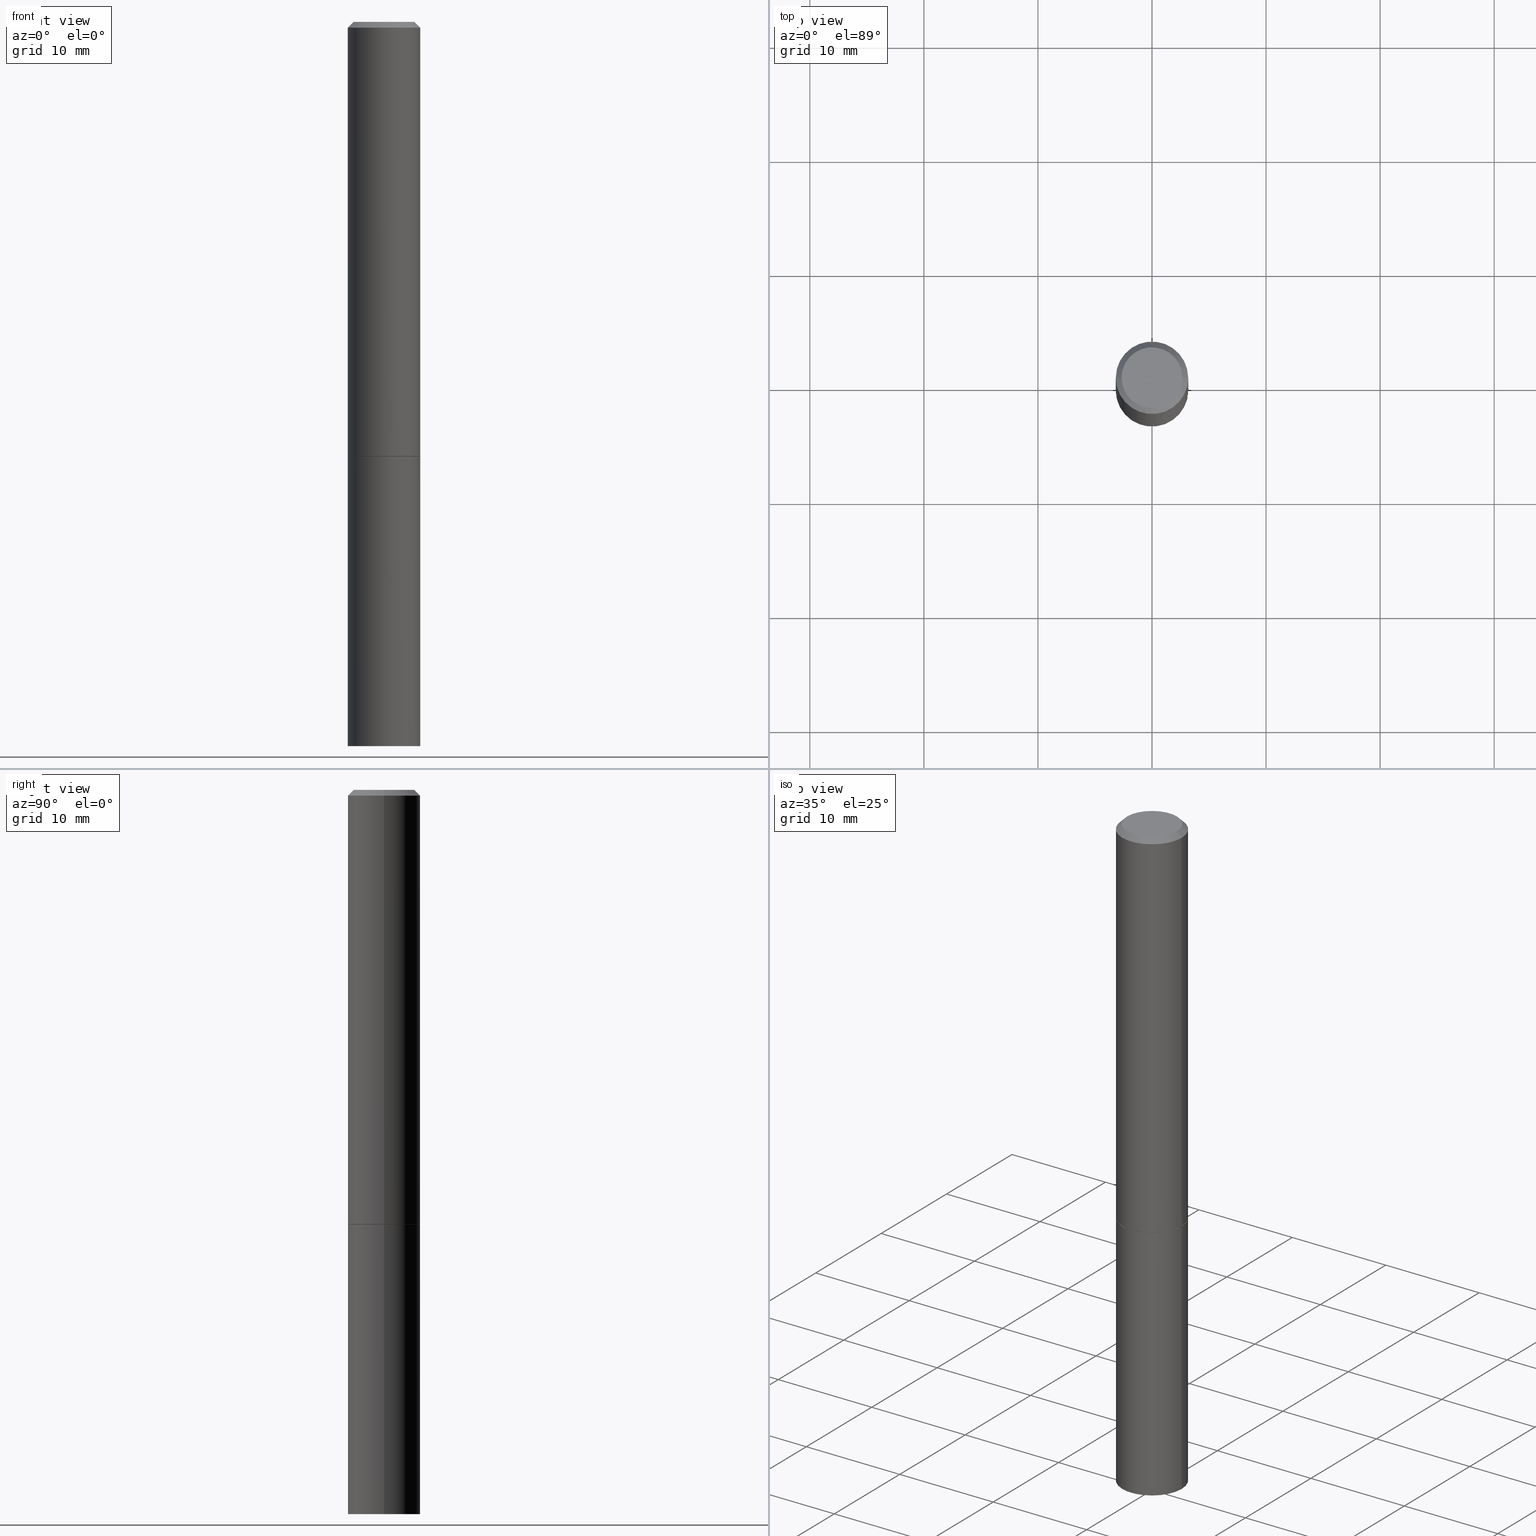
[diagram: canonical four-view strip — front | top / right | iso, engineering-drawing reading convention]
A machine part, canonical four-view strip (front | top / right | iso — engineering-drawing reading convention). The complete STEP part file that produces these views, byte-faithful:
ISO-10303-21;
HEADER;
FILE_DESCRIPTION (( 'STEP AP203' ),
    '1' );
FILE_NAME ('72955.STEP',
    '2024-02-29T04:51:39',
    ( '' ),
    ( '' ),
    'SwSTEP 2.0',
    'SolidWorks 2023',
    '' );
FILE_SCHEMA (( 'CONFIG_CONTROL_DESIGN' ));
ENDSEC;

DATA;
#1 = EDGE_CURVE ( 'NONE', #131, #157, #38, .T. ) ;
#2 = VERTEX_POINT ( 'NONE', #67 ) ;
#3 = APPROVAL_DATE_TIME ( #279, #259 ) ;
#4 = ORIENTED_EDGE ( 'NONE', *, *, #201, .T. ) ;
#5 = CC_DESIGN_PERSON_AND_ORGANIZATION_ASSIGNMENT ( #33, #112, ( #71 ) ) ;
#6 = CARTESIAN_POINT ( 'NONE',  ( 0.1250000000000000000, -8.728703347107833388E-16, 6.095220969744919741E-30 ) ) ;
#7 = EDGE_LOOP ( 'NONE', ( #133, #64 ) ) ;
#8 = DIRECTION ( 'NONE',  ( -2.445468806185136597E-29, 3.491481338843145583E-15, 1.000000000000000000 ) ) ;
#9 = DIRECTION ( 'NONE',  ( -2.445468806185136597E-29, 3.491481338843145583E-15, 1.000000000000000000 ) ) ;
#10 = AXIS2_PLACEMENT_3D ( 'NONE', #357, #179, #331 ) ;
#11 = LOCAL_TIME ( 23, 51, 39.00000000000000000, #363 ) ;
#12 = CALENDAR_DATE ( 2024, 28, 2 ) ;
#13 = CARTESIAN_POINT ( 'NONE',  ( 0.1250000000000000000, -6.106600861636658508E-15, -1.499000000000000110 ) ) ;
#14 = ADVANCED_FACE ( 'NONE', ( #351 ), #255, .F. ) ;
#15 = ORIENTED_EDGE ( 'NONE', *, *, #161, .T. ) ;
#16 = EDGE_LOOP ( 'NONE', ( #322, #249, #350, #305 ) ) ;
#17 = CONICAL_SURFACE ( 'NONE', #207, 0.1239999999999999991, 0.7853981633975507526 ) ;
#18 = CARTESIAN_POINT ( 'NONE',  ( -0.1049999999999998018, 7.681258945454876027E-16, -1.707404996040689597E-17 ) ) ;
#19 = ORIENTED_EDGE ( 'NONE', *, *, #25, .T. ) ;
#20 = EDGE_CURVE ( 'NONE', #239, #49, #181, .T. ) ;
#21 = DIRECTION ( 'NONE',  ( -2.445468806185136597E-29, 3.491481338843145583E-15, 1.000000000000000000 ) ) ;
#22 = CIRCLE ( 'NONE', #154, 0.1239999999999999991 ) ;
#23 = DIRECTION ( 'NONE',  ( 0.7071067811866199593, -2.468850131083015945E-15, 0.7071067811864750752 ) ) ;
#24 = CARTESIAN_POINT ( 'NONE',  ( -0.1250000000000000000, -6.094784257986165933E-15, -2.500000000000000000 ) ) ;
#25 = EDGE_CURVE ( 'NONE', #131, #224, #39, .T. ) ;
#26 = PERSON_AND_ORGANIZATION_ROLE ( 'creator' ) ;
#27 = PERSON_AND_ORGANIZATION_ROLE ( 'creator' ) ;
#28 = CC_DESIGN_DATE_AND_TIME_ASSIGNMENT ( #130, #307, ( #73 ) ) ;
#29 = CIRCLE ( 'NONE', #190, 0.1250000000000000000 ) ;
#30 = CARTESIAN_POINT ( 'NONE',  ( 4.175405657340879278E-46, -5.961372681521788801E-32, -1.707404996040164512E-17 ) ) ;
#31 = ORIENTED_EDGE ( 'NONE', *, *, #196, .T. ) ;
#32 = LENGTH_MEASURE_WITH_UNIT ( LENGTH_MEASURE( 0.02539999999999999897 ), #277 );
#33 = PERSON_AND_ORGANIZATION ( #210, #182 ) ;
#34 = CARTESIAN_POINT ( 'NONE',  ( -0.1250000000000000278, -1.763601657151242227E-15, -1.499000000000000110 ) ) ;
#35 = COORDINATED_UNIVERSAL_TIME_OFFSET ( 5, 0, .BEHIND. ) ;
#36 = CYLINDRICAL_SURFACE ( 'NONE', #127, 0.1249999999999999029 ) ;
#37 = DIRECTION ( 'NONE',  ( 2.438088387897960049E-29, -3.491481338843145188E-15, -1.000000000000000000 ) ) ;
#38 = CIRCLE ( 'NONE', #89, 0.1049999999999998018 ) ;
#39 = LINE ( 'NONE', #142, #225 ) ;
#40 = ADVANCED_FACE ( 'NONE', ( #348 ), #303, .T. ) ;
#41 = DIRECTION ( 'NONE',  ( -1.000000000000000000, 6.982962677686265922E-15, -4.876176775795935793E-29 ) ) ;
#42 = LINE ( 'NONE', #290, #256 ) ;
#43 = DIRECTION ( 'NONE',  ( -2.445468806185136597E-29, 3.491481338843145583E-15, 1.000000000000000000 ) ) ;
#44 = CARTESIAN_POINT ( 'NONE',  ( -0.1249999999999997780, 8.030407079339186601E-16, -0.02000000000000004552 ) ) ;
#45 = CARTESIAN_POINT ( 'NONE',  ( 0.1049999999999998018, -8.238720831321562839E-16, -1.707404996039620013E-17 ) ) ;
#46 = DATE_AND_TIME ( #12, #345 ) ;
#47 = CARTESIAN_POINT ( 'NONE',  ( 3.665757740471519853E-29, -5.233730526925875958E-15, -1.499000000000000110 ) ) ;
#48 = VECTOR ( 'NONE', #23, 39.37007874015748143 ) ;
#49 = VERTEX_POINT ( 'NONE', #13 ) ;
#50 = CYLINDRICAL_SURFACE ( 'NONE', #242, 0.1250000000000000000 ) ;
#51 = DIRECTION ( 'NONE',  ( -2.445468806185136597E-29, 3.491481338843145583E-15, 1.000000000000000000 ) ) ;
#52 = PERSON_AND_ORGANIZATION ( #210, #182 ) ;
#53 = AXIS2_PLACEMENT_3D ( 'NONE', #268, #43, #295 ) ;
#54 = LOCAL_TIME ( 23, 51, 39.00000000000000000, #55 ) ;
#55 = COORDINATED_UNIVERSAL_TIME_OFFSET ( 5, 0, .BEHIND. ) ;
#56 = ORIENTED_EDGE ( 'NONE', *, *, #329, .T. ) ;
#57 = ADVANCED_FACE ( 'NONE', ( #205 ), #313, .T. ) ;
#58 = DIRECTION ( 'NONE',  ( -2.445468806185136597E-29, 3.491481338843145583E-15, 1.000000000000000000 ) ) ;
#59 = APPROVAL_STATUS ( 'not_yet_approved' ) ;
#60 = ADVANCED_FACE ( 'NONE', ( #232 ), #228, .F. ) ;
#61 = PERSON_AND_ORGANIZATION ( #210, #182 ) ;
#62 = VECTOR ( 'NONE', #177, 39.37007874015748143 ) ;
#63 = APPROVAL ( #293, 'UNSPECIFIED' ) ;
#64 = ORIENTED_EDGE ( 'NONE', *, *, #270, .F. ) ;
#65 =( CONVERSION_BASED_UNIT ( 'INCH', #32 ) LENGTH_UNIT ( ) NAMED_UNIT ( #251 ) );
#66 = ORIENTED_EDGE ( 'NONE', *, *, #188, .F. ) ;
#67 = CARTESIAN_POINT ( 'NONE',  ( 0.1249999999999997780, -9.273918764983029686E-16, -0.02000000000000004552 ) ) ;
#68 = DIRECTION ( 'NONE',  ( 0.000000000000000000, 0.000000000000000000, 1.000000000000000000 ) ) ;
#69 = ORIENTED_EDGE ( 'NONE', *, *, #188, .T. ) ;
#70 = AXIS2_PLACEMENT_3D ( 'NONE', #330, #243, #99 ) ;
#71 = SECURITY_CLASSIFICATION ( '', '', #340 ) ;
#72 = LINE ( 'NONE', #327, #62 ) ;
#73 = PRODUCT_DEFINITION ( 'UNKNOWN', '', #100, #311 ) ;
#74 = DIRECTION ( 'NONE',  ( 1.000000000000000000, -6.982962677686262766E-15, 0.000000000000000000 ) ) ;
#75 = ORIENTED_EDGE ( 'NONE', *, *, #25, .F. ) ;
#76 = APPROVAL_PERSON_ORGANIZATION ( #52, #95, #126 ) ;
#77 = APPLICATION_PROTOCOL_DEFINITION ( 'international standard', 'config_control_design', 1994, #356 ) ;
#78 = AXIS2_PLACEMENT_3D ( 'NONE', #349, #200, #254 ) ;
#79 = PRODUCT ( '72955', '72955', '', ( #341 ) ) ;
#80 = VERTEX_POINT ( 'NONE', #354 ) ;
#81 = AXIS2_PLACEMENT_3D ( 'NONE', #121, #235, #97 ) ;
#82 = AXIS2_PLACEMENT_3D ( 'NONE', #186, #58, #145 ) ;
#83 = ORIENTED_EDGE ( 'NONE', *, *, #1, .F. ) ;
#84 = ADVANCED_FACE ( 'NONE', ( #203 ), #17, .T. ) ;
#85 = PLANE ( 'NONE',  #78 ) ;
#86 = LINE ( 'NONE', #6, #141 ) ;
#87 = PERSON_AND_ORGANIZATION_ROLE ( 'design_owner' ) ;
#88 = ORIENTED_EDGE ( 'NONE', *, *, #319, .F. ) ;
#89 = AXIS2_PLACEMENT_3D ( 'NONE', #209, #123, #118 ) ;
#90 = CARTESIAN_POINT ( 'NONE',  ( 3.668203209277704335E-29, -5.237222008264717388E-15, -1.499999999999999778 ) ) ;
#91 = EDGE_CURVE ( 'NONE', #315, #238, #72, .T. ) ;
#92 = EDGE_LOOP ( 'NONE', ( #281, #31, #165, #88 ) ) ;
#93 = DATE_TIME_ROLE ( 'classification_date' ) ;
#94 = DIRECTION ( 'NONE',  ( -1.000000000000000000, 6.982962677686265922E-15, -4.876176775795935793E-29 ) ) ;
#95 = APPROVAL ( #302, 'UNSPECIFIED' ) ;
#96 = CARTESIAN_POINT ( 'NONE',  ( 3.668203209277704335E-29, -5.237222008264717388E-15, -1.499999999999999778 ) ) ;
#97 = DIRECTION ( 'NONE',  ( 1.000000000000000000, -6.982962677686262766E-15, 0.000000000000000000 ) ) ;
#98 = CARTESIAN_POINT ( 'NONE',  ( 7.332110811570565452E-16, 0.1049999999999998018, -3.751425655587304572E-16 ) ) ;
#99 = DIRECTION ( 'NONE',  ( 1.000000000000000000, -6.982962677686262766E-15, 0.000000000000000000 ) ) ;
#100 = PRODUCT_DEFINITION_FORMATION_WITH_SPECIFIED_SOURCE ( 'ANY', '', #79, .NOT_KNOWN. ) ;
#101 = ORIENTED_EDGE ( 'NONE', *, *, #319, .T. ) ;
#102 = CIRCLE ( 'NONE', #82, 0.1249999999999997780 ) ;
#103 = CARTESIAN_POINT ( 'NONE',  ( 3.668203209277704895E-29, -5.237222008264718177E-15, -1.500000000000000222 ) ) ;
#104 = EDGE_LOOP ( 'NONE', ( #258, #180 ) ) ;
#105 = ORIENTED_EDGE ( 'NONE', *, *, #170, .T. ) ;
#106 = AXIS2_PLACEMENT_3D ( 'NONE', #96, #178, #291 ) ;
#107 = DATE_AND_TIME ( #337, #11 ) ;
#108 = PERSON_AND_ORGANIZATION ( #210, #182 ) ;
#109 = ORIENTED_EDGE ( 'NONE', *, *, #237, .F. ) ;
#110 = CARTESIAN_POINT ( 'NONE',  ( 0.000000000000000000, 0.000000000000000000, 0.000000000000000000 ) ) ;
#111 = LINE ( 'NONE', #223, #199 ) ;
#112 = PERSON_AND_ORGANIZATION_ROLE ( 'classification_officer' ) ;
#113 = ORIENTED_EDGE ( 'NONE', *, *, #117, .T. ) ;
#114 = CARTESIAN_POINT ( 'NONE',  ( 0.000000000000000000, 0.000000000000000000, 0.000000000000000000 ) ) ;
#115 = DIRECTION ( 'NONE',  ( -1.000000000000000000, 6.982962677686266711E-15, 0.000000000000000000 ) ) ;
#116 = APPLICATION_PROTOCOL_DEFINITION ( 'international standard', 'config_control_design', 1994, #328 ) ;
#117 = EDGE_CURVE ( 'NONE', #157, #2, #42, .T. ) ;
#118 = DIRECTION ( 'NONE',  ( 1.000000000000000000, -6.982962677686265922E-15, 4.876206205277402997E-29 ) ) ;
#119 = DIRECTION ( 'NONE',  ( 0.7071067811865465735, -7.319954787623252890E-15, -0.7071067811865484609 ) ) ;
#120 = AXIS2_PLACEMENT_3D ( 'NONE', #206, #9, #316 ) ;
#121 = CARTESIAN_POINT ( 'NONE',  ( 3.668203209277704895E-29, -5.237222008264718177E-15, -1.500000000000000222 ) ) ;
#122 = DIRECTION ( 'NONE',  ( 1.000000000000000000, -6.982962677686262766E-15, 0.000000000000000000 ) ) ;
#123 = DIRECTION ( 'NONE',  ( -2.445468806185136597E-29, 3.491481338843145583E-15, 1.000000000000000000 ) ) ;
#124 = AXIS2_PLACEMENT_3D ( 'NONE', #30, #8, #312 ) ;
#125 = CARTESIAN_POINT ( 'NONE',  ( 0.1250000000000000000, -9.601573681818648281E-15, -2.500000000000000000 ) ) ;
#126 = APPROVAL_ROLE ( '' ) ;
#127 = AXIS2_PLACEMENT_3D ( 'NONE', #138, #51, #152 ) ;
#128 = DIRECTION ( 'NONE',  ( -2.445468806185136877E-29, 3.491481338843145188E-15, 1.000000000000000000 ) ) ;
#129 = EDGE_LOOP ( 'NONE', ( #286, #221, #284, #109 ) ) ;
#130 = DATE_AND_TIME ( #247, #54 ) ;
#131 = VERTEX_POINT ( 'NONE', #18 ) ;
#132 = PERSON_AND_ORGANIZATION ( #210, #182 ) ;
#133 = ORIENTED_EDGE ( 'NONE', *, *, #201, .F. ) ;
#134 = CIRCLE ( 'NONE', #70, 0.1239999999999999991 ) ;
#135 = LOCAL_TIME ( 23, 51, 39.00000000000000000, #35 ) ;
#136 = EDGE_LOOP ( 'NONE', ( #169, #83, #19, #160 ) ) ;
#137 = CALENDAR_DATE ( 2024, 28, 2 ) ;
#138 = CARTESIAN_POINT ( 'NONE',  ( 0.000000000000000000, 0.000000000000000000, 0.000000000000000000 ) ) ;
#139 = CARTESIAN_POINT ( 'NONE',  ( 4.890937612370284544E-31, -6.982962677686307633E-17, -0.02000000000000004552 ) ) ;
#140 = AXIS2_PLACEMENT_3D ( 'NONE', #139, #149, #147 ) ;
#141 = VECTOR ( 'NONE', #198, 39.37007874015748143 ) ;
#142 = CARTESIAN_POINT ( 'NONE',  ( -0.1249999999999997780, 8.030407079339186601E-16, -0.02000000000000004552 ) ) ;
#143 = DIRECTION ( 'NONE',  ( -2.445468806185136597E-29, 3.491481338843145583E-15, 1.000000000000000000 ) ) ;
#144 = DIRECTION ( 'NONE',  ( 2.445468806185136597E-29, -3.491481338843145583E-15, -1.000000000000000000 ) ) ;
#145 = DIRECTION ( 'NONE',  ( 1.000000000000000000, -6.982962677686266711E-15, 0.000000000000000000 ) ) ;
#146 = DIRECTION ( 'NONE',  ( 2.438088387897960049E-29, -3.491481338843145188E-15, -1.000000000000000000 ) ) ;
#147 = DIRECTION ( 'NONE',  ( -1.000000000000000000, 6.982962677686266711E-15, 0.000000000000000000 ) ) ;
#148 = CARTESIAN_POINT ( 'NONE',  ( 8.728703347108198236E-16, 0.1249999999999947542, -1.500000000000000666 ) ) ;
#149 = DIRECTION ( 'NONE',  ( 2.445468806185136597E-29, -3.491481338843145583E-15, -1.000000000000000000 ) ) ;
#150 = DIRECTION ( 'NONE',  ( -2.445468806185136597E-29, 3.491481338843145583E-15, 1.000000000000000000 ) ) ;
#151 = LINE ( 'NONE', #244, #48 ) ;
#152 = DIRECTION ( 'NONE',  ( 1.000000000000000000, -6.982962677686266711E-15, 4.876176775795935793E-29 ) ) ;
#153 = DIRECTION ( 'NONE',  ( -2.445468806185136597E-29, 3.491481338843145583E-15, 1.000000000000000000 ) ) ;
#154 = AXIS2_PLACEMENT_3D ( 'NONE', #189, #297, #336 ) ;
#155 = FACE_OUTER_BOUND ( 'NONE', #204, .T. ) ;
#156 = ADVANCED_FACE ( 'NONE', ( #294 ), #166, .T. ) ;
#157 = VERTEX_POINT ( 'NONE', #45 ) ;
#158 = CLOSED_SHELL ( 'NONE', ( #84, #185, #40, #57, #248, #156, #60, #14 ) ) ;
#159 = DIRECTION ( 'NONE',  ( 1.000000000000000000, -6.982962677686270655E-15, 0.000000000000000000 ) ) ;
#160 = ORIENTED_EDGE ( 'NONE', *, *, #362, .T. ) ;
#161 = EDGE_CURVE ( 'NONE', #80, #238, #262, .T. ) ;
#162 = VERTEX_POINT ( 'NONE', #211 ) ;
#163 = DIRECTION ( 'NONE',  ( -2.445468806185136597E-29, 3.491481338843145583E-15, 1.000000000000000000 ) ) ;
#164 = DIRECTION ( 'NONE',  ( 1.000000000000000000, -6.982962677686266711E-15, 4.876176775795935793E-29 ) ) ;
#165 = ORIENTED_EDGE ( 'NONE', *, *, #170, .F. ) ;
#166 = CONICAL_SURFACE ( 'NONE', #106, 0.1239999999999999991, 0.7853981633975507526 ) ;
#167 = FACE_OUTER_BOUND ( 'NONE', #129, .T. ) ;
#168 = FACE_OUTER_BOUND ( 'NONE', #92, .T. ) ;
#169 = ORIENTED_EDGE ( 'NONE', *, *, #117, .F. ) ;
#170 = EDGE_CURVE ( 'NONE', #2, #224, #102, .T. ) ;
#171 = CALENDAR_DATE ( 2024, 28, 2 ) ;
#172 =( NAMED_UNIT ( * ) SI_UNIT ( $, .STERADIAN. ) SOLID_ANGLE_UNIT ( ) );
#173 = CARTESIAN_POINT ( 'NONE',  ( 4.890937612370284544E-31, -6.982962677686307633E-17, -0.02000000000000004552 ) ) ;
#174 = PERSON_AND_ORGANIZATION ( #210, #182 ) ;
#175 = ORIENTED_EDGE ( 'NONE', *, *, #215, .T. ) ;
#176 = VECTOR ( 'NONE', #326, 39.37007874015748143 ) ;
#177 = DIRECTION ( 'NONE',  ( -2.445468806185136877E-29, 3.491481338843145188E-15, 1.000000000000000000 ) ) ;
#178 = DIRECTION ( 'NONE',  ( -2.445468806185136597E-29, 3.491481338843145583E-15, 1.000000000000000000 ) ) ;
#179 = DIRECTION ( 'NONE',  ( -2.445468806185136597E-29, 3.491481338843145583E-15, 1.000000000000000000 ) ) ;
#180 = ORIENTED_EDGE ( 'NONE', *, *, #300, .F. ) ;
#181 = CIRCLE ( 'NONE', #10, 0.1250000000000000000 ) ;
#182 = ORGANIZATION ( 'UNSPECIFIED', 'UNSPECIFIED', '' ) ;
#183 = CC_DESIGN_SECURITY_CLASSIFICATION ( #71, ( #100 ) ) ;
#184 = COORDINATED_UNIVERSAL_TIME_OFFSET ( 5, 0, .BEHIND. ) ;
#185 = ADVANCED_FACE ( 'NONE', ( #168 ), #335, .T. ) ;
#186 = CARTESIAN_POINT ( 'NONE',  ( 4.890937612370284544E-31, -6.982962677686307633E-17, -0.02000000000000004552 ) ) ;
#187 = MANIFOLD_SOLID_BREP ( 'Body-Move/Copy2[2]', #158 ) ;
#188 = EDGE_CURVE ( 'NONE', #157, #131, #234, .T. ) ;
#189 = CARTESIAN_POINT ( 'NONE',  ( 3.668203209277704335E-29, -5.237222008264717388E-15, -1.499999999999999778 ) ) ;
#190 = AXIS2_PLACEMENT_3D ( 'NONE', #269, #153, #298 ) ;
#191 = APPROVAL_PERSON_ORGANIZATION ( #132, #259, #358 ) ;
#192 = CC_DESIGN_PERSON_AND_ORGANIZATION_ASSIGNMENT ( #283, #26, ( #100 ) ) ;
#193 = LINE ( 'NONE', #366, #267 ) ;
#194 = ADVANCED_BREP_SHAPE_REPRESENTATION ( '72955', ( #301, #187, #332 ), #296 ) ;
#195 = EDGE_LOOP ( 'NONE', ( #4, #56, #274, #359 ) ) ;
#196 = EDGE_CURVE ( 'NONE', #239, #224, #317, .T. ) ;
#197 = APPROVAL_DATE_TIME ( #107, #95 ) ;
#198 = DIRECTION ( 'NONE',  ( -2.445468806185136877E-29, 3.491481338843145188E-15, 1.000000000000000000 ) ) ;
#199 = VECTOR ( 'NONE', #304, 39.37007874015748143 ) ;
#200 = DIRECTION ( 'NONE',  ( 2.438088387897960049E-29, -3.491481338843145188E-15, -1.000000000000000000 ) ) ;
#201 = EDGE_CURVE ( 'NONE', #162, #347, #22, .T. ) ;
#202 = ORIENTED_EDGE ( 'NONE', *, *, #91, .F. ) ;
#203 = FACE_OUTER_BOUND ( 'NONE', #195, .T. ) ;
#204 = EDGE_LOOP ( 'NONE', ( #202, #264, #339, #338 ) ) ;
#205 = FACE_OUTER_BOUND ( 'NONE', #136, .T. ) ;
#206 = CARTESIAN_POINT ( 'NONE',  ( 0.000000000000000000, 0.000000000000000000, 0.000000000000000000 ) ) ;
#207 = AXIS2_PLACEMENT_3D ( 'NONE', #289, #324, #74 ) ;
#208 = PLANE ( 'NONE',  #250 ) ;
#209 = CARTESIAN_POINT ( 'NONE',  ( 4.175405657340879278E-46, -5.961372681521788801E-32, -1.707404996040164512E-17 ) ) ;
#210 = PERSON ( 'UNSPECIFIED', 'UNSPECIFIED', 'UNSPECIFIED', ('UNSPECIFIED'), ('UNSPECIFIED'), ('UNSPECIFIED') ) ;
#211 = CARTESIAN_POINT ( 'NONE',  ( 0.1239999999999999991, -6.103109380297813924E-15, -1.499999999999999778 ) ) ;
#212 = ORIENTED_EDGE ( 'NONE', *, *, #196, .F. ) ;
#213 = CC_DESIGN_APPROVAL ( #95, ( #73 ) ) ;
#214 = APPROVAL_PERSON_ORGANIZATION ( #323, #63, #292 ) ;
#215 = EDGE_CURVE ( 'NONE', #238, #80, #343, .T. ) ;
#216 = CC_DESIGN_PERSON_AND_ORGANIZATION_ASSIGNMENT ( #61, #27, ( #73 ) ) ;
#217 = CLOSED_SHELL ( 'NONE', ( #360, #333, #257, #231 ) ) ;
#218 = ORIENTED_EDGE ( 'NONE', *, *, #362, .F. ) ;
#219 = AXIS2_PLACEMENT_3D ( 'NONE', #173, #144, #115 ) ;
#220 = LOCAL_TIME ( 23, 51, 39.00000000000000000, #184 ) ;
#221 = ORIENTED_EDGE ( 'NONE', *, *, #91, .T. ) ;
#222 = DIRECTION ( 'NONE',  ( 1.000000000000000000, 0.000000000000000000, 0.000000000000000000 ) ) ;
#223 = CARTESIAN_POINT ( 'NONE',  ( -0.1239999999999999991, -4.356149015922193953E-15, -1.499999999999999778 ) ) ;
#224 = VERTEX_POINT ( 'NONE', #44 ) ;
#225 = VECTOR ( 'NONE', #260, 39.37007874015748143 ) ;
#226 = EDGE_LOOP ( 'NONE', ( #15, #175 ) ) ;
#227 = CARTESIAN_POINT ( 'NONE',  ( -0.1239999999999999991, -4.350850561573971550E-15, -1.499999999999999778 ) ) ;
#228 = PLANE ( 'NONE',  #240 ) ;
#229 =( NAMED_UNIT ( * ) PLANE_ANGLE_UNIT ( ) SI_UNIT ( $, .RADIAN. ) );
#230 = EDGE_LOOP ( 'NONE', ( #66, #113, #105, #75 ) ) ;
#231 = ADVANCED_FACE ( 'NONE', ( #155 ), #50, .T. ) ;
#232 = FACE_OUTER_BOUND ( 'NONE', #7, .T. ) ;
#233 = CC_DESIGN_DATE_AND_TIME_ASSIGNMENT ( #46, #93, ( #71 ) ) ;
#234 = CIRCLE ( 'NONE', #124, 0.1049999999999998018 ) ;
#235 = DIRECTION ( 'NONE',  ( -2.445468806185136597E-29, 3.491481338843145583E-15, 1.000000000000000000 ) ) ;
#236 = EDGE_LOOP ( 'NONE', ( #212, #355, #101, #218 ) ) ;
#237 = EDGE_CURVE ( 'NONE', #308, #80, #86, .T. ) ;
#238 = VERTEX_POINT ( 'NONE', #314 ) ;
#239 = VERTEX_POINT ( 'NONE', #34 ) ;
#240 = AXIS2_PLACEMENT_3D ( 'NONE', #90, #261, #320 ) ;
#241 = CIRCLE ( 'NONE', #353, 0.1250000000000000000 ) ;
#242 = AXIS2_PLACEMENT_3D ( 'NONE', #114, #163, #164 ) ;
#243 = DIRECTION ( 'NONE',  ( -2.445468806185136597E-29, 3.491481338843145583E-15, 1.000000000000000000 ) ) ;
#244 = CARTESIAN_POINT ( 'NONE',  ( 0.1239999999999999991, -6.103109380297813924E-15, -1.499999999999999778 ) ) ;
#245 = CC_DESIGN_PERSON_AND_ORGANIZATION_ASSIGNMENT ( #174, #87, ( #79 ) ) ;
#246 = CC_DESIGN_APPROVAL ( #259, ( #100 ) ) ;
#247 = CALENDAR_DATE ( 2024, 28, 2 ) ;
#248 = ADVANCED_FACE ( 'NONE', ( #253 ), #36, .T. ) ;
#249 = ORIENTED_EDGE ( 'NONE', *, *, #270, .T. ) ;
#250 = AXIS2_PLACEMENT_3D ( 'NONE', #148, #146, #41 ) ;
#251 = DIMENSIONAL_EXPONENTS ( 1.000000000000000000, 0.000000000000000000, 0.000000000000000000, 0.000000000000000000, 0.000000000000000000, 0.000000000000000000, 0.000000000000000000 ) ;
#252 = ORIENTED_EDGE ( 'NONE', *, *, #1, .T. ) ;
#253 = FACE_OUTER_BOUND ( 'NONE', #236, .T. ) ;
#254 = DIRECTION ( 'NONE',  ( -1.000000000000000000, 6.982962677686265922E-15, -4.876176775795935793E-29 ) ) ;
#255 = PLANE ( 'NONE',  #342 ) ;
#256 = VECTOR ( 'NONE', #119, 39.37007874015748143 ) ;
#257 = ADVANCED_FACE ( 'NONE', ( #266 ), #208, .F. ) ;
#258 = ORIENTED_EDGE ( 'NONE', *, *, #287, .F. ) ;
#259 = APPROVAL ( #59, 'UNSPECIFIED' ) ;
#260 = DIRECTION ( 'NONE',  ( -0.7071067811865465735, 2.468850131082246805E-15, -0.7071067811865484609 ) ) ;
#261 = DIRECTION ( 'NONE',  ( -2.438088387897960049E-29, 3.491481338843145188E-15, 1.000000000000000000 ) ) ;
#262 = CIRCLE ( 'NONE', #81, 0.1250000000000000000 ) ;
#263 = DIRECTION ( 'NONE',  ( -2.445468806185136597E-29, 3.491481338843145583E-15, 1.000000000000000000 ) ) ;
#264 = ORIENTED_EDGE ( 'NONE', *, *, #300, .T. ) ;
#265 = CARTESIAN_POINT ( 'NONE',  ( 6.113672015462842613E-29, -8.728703347107864943E-15, -2.500000000000000000 ) ) ;
#266 = FACE_OUTER_BOUND ( 'NONE', #226, .T. ) ;
#267 = VECTOR ( 'NONE', #128, 39.37007874015748143 ) ;
#268 = CARTESIAN_POINT ( 'NONE',  ( 0.000000000000000000, 0.000000000000000000, 0.000000000000000000 ) ) ;
#269 = CARTESIAN_POINT ( 'NONE',  ( 6.113672015462842613E-29, -8.728703347107864943E-15, -2.500000000000000000 ) ) ;
#270 = EDGE_CURVE ( 'NONE', #347, #162, #134, .T. ) ;
#271 = CIRCLE ( 'NONE', #278, 0.1249999999999997780 ) ;
#272 = CC_DESIGN_APPROVAL ( #63, ( #71 ) ) ;
#273 = UNCERTAINTY_MEASURE_WITH_UNIT (LENGTH_MEASURE( 1.000000000000000082E-05 ), #65, 'distance_accuracy_value', 'NONE');
#274 = ORIENTED_EDGE ( 'NONE', *, *, #276, .F. ) ;
#275 = FACE_OUTER_BOUND ( 'NONE', #104, .T. ) ;
#276 = EDGE_CURVE ( 'NONE', #49, #239, #241, .T. ) ;
#277 =( LENGTH_UNIT ( ) NAMED_UNIT ( * ) SI_UNIT ( $, .METRE. ) );
#278 = AXIS2_PLACEMENT_3D ( 'NONE', #282, #143, #325 ) ;
#279 = DATE_AND_TIME ( #171, #220 ) ;
#280 = CC_DESIGN_PERSON_AND_ORGANIZATION_ASSIGNMENT ( #108, #285, ( #100 ) ) ;
#281 = ORIENTED_EDGE ( 'NONE', *, *, #276, .T. ) ;
#282 = CARTESIAN_POINT ( 'NONE',  ( 4.890937612370284544E-31, -6.982962677686307633E-17, -0.02000000000000004552 ) ) ;
#283 = PERSON_AND_ORGANIZATION ( #210, #182 ) ;
#284 = ORIENTED_EDGE ( 'NONE', *, *, #161, .F. ) ;
#285 = PERSON_AND_ORGANIZATION_ROLE ( 'design_supplier' ) ;
#286 = ORIENTED_EDGE ( 'NONE', *, *, #287, .T. ) ;
#287 = EDGE_CURVE ( 'NONE', #308, #315, #364, .T. ) ;
#288 = AXIS2_PLACEMENT_3D ( 'NONE', #265, #21, #159 ) ;
#289 = CARTESIAN_POINT ( 'NONE',  ( 3.668203209277704335E-29, -5.237222008264717388E-15, -1.499999999999999778 ) ) ;
#290 = CARTESIAN_POINT ( 'NONE',  ( 0.1249999999999997780, -9.273918764983029686E-16, -0.02000000000000004552 ) ) ;
#291 = DIRECTION ( 'NONE',  ( 1.000000000000000000, -6.982962677686262766E-15, 0.000000000000000000 ) ) ;
#292 = APPROVAL_ROLE ( '' ) ;
#293 = APPROVAL_STATUS ( 'not_yet_approved' ) ;
#294 = FACE_OUTER_BOUND ( 'NONE', #16, .T. ) ;
#295 = DIRECTION ( 'NONE',  ( 1.000000000000000000, -6.982962677686266711E-15, 4.876176775795935793E-29 ) ) ;
#296 =( GEOMETRIC_REPRESENTATION_CONTEXT ( 3 ) GLOBAL_UNCERTAINTY_ASSIGNED_CONTEXT ( ( #273 ) ) GLOBAL_UNIT_ASSIGNED_CONTEXT ( ( #65, #229, #172 ) ) REPRESENTATION_CONTEXT ( 'NONE', 'WORKASPACE' ) );
#297 = DIRECTION ( 'NONE',  ( -2.445468806185136597E-29, 3.491481338843145583E-15, 1.000000000000000000 ) ) ;
#298 = DIRECTION ( 'NONE',  ( 1.000000000000000000, -6.982962677686270655E-15, 0.000000000000000000 ) ) ;
#299 = PRODUCT_DEFINITION_SHAPE ( 'NONE', 'NONE',  #73 ) ;
#300 = EDGE_CURVE ( 'NONE', #315, #308, #29, .T. ) ;
#301 = MANIFOLD_SOLID_BREP ( 'Body-Move/Copy2[1]', #217 ) ;
#302 = APPROVAL_STATUS ( 'not_yet_approved' ) ;
#303 = CONICAL_SURFACE ( 'NONE', #140, 0.1249999999999997780, 0.7853981633974469467 ) ;
#304 = DIRECTION ( 'NONE',  ( -0.7071067811866199593, 7.493145998870616062E-15, 0.7071067811864750752 ) ) ;
#305 = ORIENTED_EDGE ( 'NONE', *, *, #20, .F. ) ;
#306 = APPROVAL_DATE_TIME ( #334, #63 ) ;
#307 = DATE_TIME_ROLE ( 'creation_date' ) ;
#308 = VERTEX_POINT ( 'NONE', #125 ) ;
#309 = SHAPE_DEFINITION_REPRESENTATION ( #299, #194 ) ;
#310 = EDGE_CURVE ( 'NONE', #162, #49, #151, .T. ) ;
#311 = DESIGN_CONTEXT ( 'detailed design', #356, 'design' ) ;
#312 = DIRECTION ( 'NONE',  ( 1.000000000000000000, -6.982962677686265922E-15, 4.876206205277402997E-29 ) ) ;
#313 = CONICAL_SURFACE ( 'NONE', #219, 0.1249999999999997780, 0.7853981633974469467 ) ;
#314 = CARTESIAN_POINT ( 'NONE',  ( -0.1250000000000000000, -6.094784257986165933E-15, -1.500000000000000222 ) ) ;
#315 = VERTEX_POINT ( 'NONE', #24 ) ;
#316 = DIRECTION ( 'NONE',  ( 1.000000000000000000, -6.982962677686266711E-15, 4.876176775795935793E-29 ) ) ;
#317 = LINE ( 'NONE', #321, #176 ) ;
#318 = EDGE_LOOP ( 'NONE', ( #252, #69 ) ) ;
#319 = EDGE_CURVE ( 'NONE', #49, #2, #193, .T. ) ;
#320 = DIRECTION ( 'NONE',  ( 1.000000000000000000, -6.982962677686265922E-15, 4.876176775795935793E-29 ) ) ;
#321 = CARTESIAN_POINT ( 'NONE',  ( -0.1249999999999999029, 8.881784197001245421E-16, -6.148668862818627323E-30 ) ) ;
#322 = ORIENTED_EDGE ( 'NONE', *, *, #329, .F. ) ;
#323 = PERSON_AND_ORGANIZATION ( #210, #182 ) ;
#324 = DIRECTION ( 'NONE',  ( -2.445468806185136597E-29, 3.491481338843145583E-15, 1.000000000000000000 ) ) ;
#325 = DIRECTION ( 'NONE',  ( 1.000000000000000000, -6.982962677686266711E-15, 0.000000000000000000 ) ) ;
#326 = DIRECTION ( 'NONE',  ( -2.445468806185136877E-29, 3.491481338843145188E-15, 1.000000000000000000 ) ) ;
#327 = CARTESIAN_POINT ( 'NONE',  ( -0.1250000000000000000, 8.881784197001252323E-16, -6.148668862818632227E-30 ) ) ;
#328 = APPLICATION_CONTEXT ( 'configuration controlled 3d designs of mechanical parts and assemblies' ) ;
#329 = EDGE_CURVE ( 'NONE', #347, #239, #111, .T. ) ;
#330 = CARTESIAN_POINT ( 'NONE',  ( 3.668203209277704335E-29, -5.237222008264717388E-15, -1.499999999999999778 ) ) ;
#331 = DIRECTION ( 'NONE',  ( 1.000000000000000000, -6.982962677686262766E-15, 0.000000000000000000 ) ) ;
#332 = AXIS2_PLACEMENT_3D ( 'NONE', #110, #68, #222 ) ;
#333 = ADVANCED_FACE ( 'NONE', ( #275 ), #85, .T. ) ;
#334 = DATE_AND_TIME ( #137, #135 ) ;
#335 = CYLINDRICAL_SURFACE ( 'NONE', #53, 0.1249999999999999029 ) ;
#336 = DIRECTION ( 'NONE',  ( 1.000000000000000000, -6.982962677686262766E-15, 0.000000000000000000 ) ) ;
#337 = CALENDAR_DATE ( 2024, 28, 2 ) ;
#338 = ORIENTED_EDGE ( 'NONE', *, *, #215, .F. ) ;
#339 = ORIENTED_EDGE ( 'NONE', *, *, #237, .T. ) ;
#340 = SECURITY_CLASSIFICATION_LEVEL ( 'unclassified' ) ;
#341 = MECHANICAL_CONTEXT ( 'NONE', #328, 'mechanical' ) ;
#342 = AXIS2_PLACEMENT_3D ( 'NONE', #98, #37, #94 ) ;
#343 = CIRCLE ( 'NONE', #361, 0.1250000000000000000 ) ;
#344 = COORDINATED_UNIVERSAL_TIME_OFFSET ( 5, 0, .BEHIND. ) ;
#345 = LOCAL_TIME ( 23, 51, 39.00000000000000000, #344 ) ;
#346 = DIRECTION ( 'NONE',  ( 1.000000000000000000, -6.982962677686262766E-15, 0.000000000000000000 ) ) ;
#347 = VERTEX_POINT ( 'NONE', #227 ) ;
#348 = FACE_OUTER_BOUND ( 'NONE', #230, .T. ) ;
#349 = CARTESIAN_POINT ( 'NONE',  ( 8.728703347108443769E-16, 0.1249999999999912709, -2.500000000000000444 ) ) ;
#350 = ORIENTED_EDGE ( 'NONE', *, *, #310, .T. ) ;
#351 = FACE_OUTER_BOUND ( 'NONE', #318, .T. ) ;
#352 = CYLINDRICAL_SURFACE ( 'NONE', #120, 0.1250000000000000000 ) ;
#353 = AXIS2_PLACEMENT_3D ( 'NONE', #47, #263, #122 ) ;
#354 = CARTESIAN_POINT ( 'NONE',  ( 0.1250000000000000000, -6.110092342975501516E-15, -1.500000000000000222 ) ) ;
#355 = ORIENTED_EDGE ( 'NONE', *, *, #20, .T. ) ;
#356 = APPLICATION_CONTEXT ( 'configuration controlled 3d designs of mechanical parts and assemblies' ) ;
#357 = CARTESIAN_POINT ( 'NONE',  ( 3.665757740471519853E-29, -5.233730526925875958E-15, -1.499000000000000110 ) ) ;
#358 = APPROVAL_ROLE ( '' ) ;
#359 = ORIENTED_EDGE ( 'NONE', *, *, #310, .F. ) ;
#360 = ADVANCED_FACE ( 'NONE', ( #167 ), #352, .T. ) ;
#361 = AXIS2_PLACEMENT_3D ( 'NONE', #103, #150, #346 ) ;
#362 = EDGE_CURVE ( 'NONE', #224, #2, #271, .T. ) ;
#363 = COORDINATED_UNIVERSAL_TIME_OFFSET ( 5, 0, .BEHIND. ) ;
#364 = CIRCLE ( 'NONE', #288, 0.1250000000000000000 ) ;
#365 = PRODUCT_RELATED_PRODUCT_CATEGORY ( 'detail', '', ( #79 ) ) ;
#366 = CARTESIAN_POINT ( 'NONE',  ( 0.1249999999999999029, -8.728703347107826486E-16, 6.095220969744914837E-30 ) ) ;
ENDSEC;
END-ISO-10303-21;
